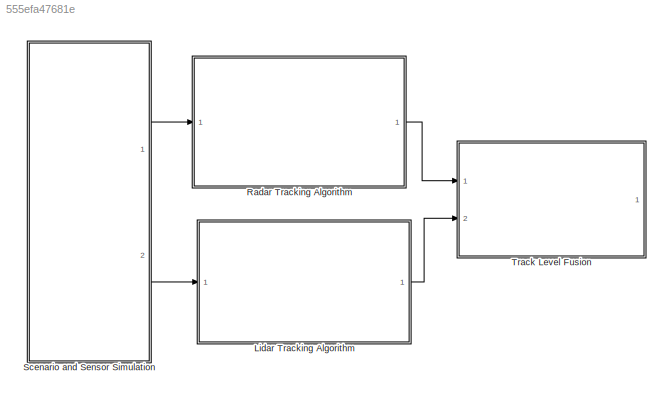
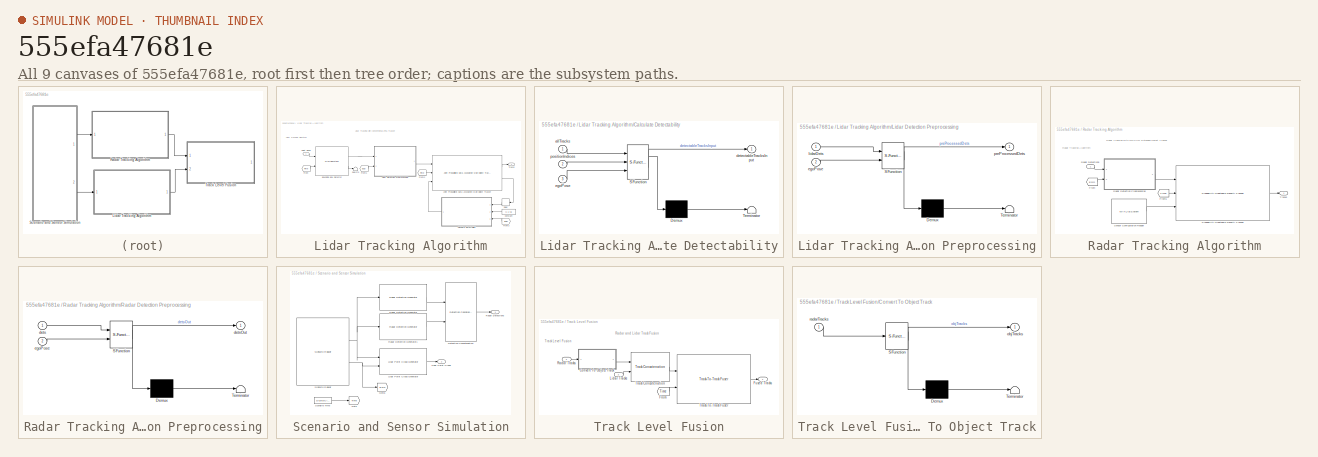
[diagram: thumbnail index - all 9 canvases of the model, root first then tree order]
MODEL slx_555efa47681e
KIND model
CONFIG AbsTol = auto
CONFIG EnableMultiTasking = off
CONFIG FixedStep = 0.1
CONFIG MaxStep = auto
CONFIG MinStep = auto
CONFIG PreLoadFcn = %Load the scnenario recording\nload('RadarAndLidarTrackFusionScenario.mat')\n\nrng(2019);\n\n%RadarTrackBus\nif ~exist('RadarTrackBus','var')\n    % Sample Track\n    sampleTrack =  struct('TrackID', uint32(1), ...\n            'BranchID', uint32(1), ...\n         'SourceIndex', uint32(1), ...\n          'UpdateTime', double(zeros(1)), ...\n                 'Age', uint32(1), ...\n               'State', double...<+4793ch>
CONFIG RelTol = 1e-3
CONFIG SampleTimeConstraint = Unconstrained
CONFIG SolverName = FixedStepDiscrete
CONFIG StartTime = 0.1
CONFIG StopTime = 11.3
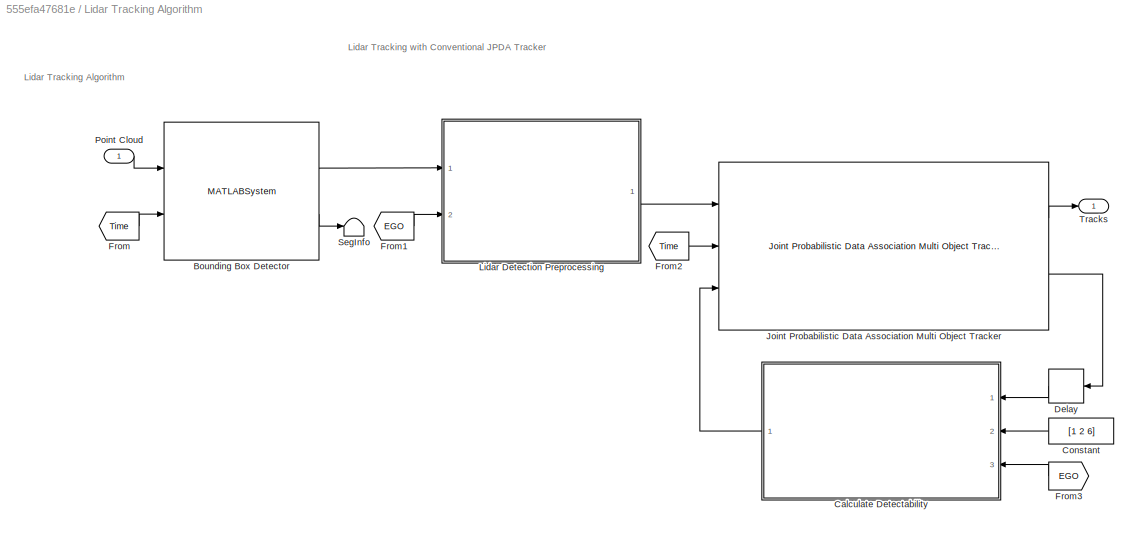
BLOCK [SubSystem] Lidar Tracking Algorithm
  Ports = [1, 1]
  RequestExecContextInheritance = off
BLOCK [MATLABSystem] Lidar Tracking Algorithm/Bounding Box Detector
  DetectionBusName = detectionBus
  EgoVehicleRadius = 0.5
  GroundMaxAngularDistance = 5
  GroundMaxDistance = 0.3
  GroundReferenceVector = [ 0, 0, 1 ]
  MaskDisplay = disp('Helper\nBounding\nBox\nDetector');\nport_label('input',1,'Point Cloud');\nport_label('input',2,'Time');\nport_label('output',1,'Detections');\nport_label('output',2,'SegmentationInfo');
  MaskType = HelperBoundingBoxDetectorBlk
  MaxZDistanceCluster = 3
  MeasurementNoise = blkdiag(0.05*eye(3),25,2*eye(3))
  MeasurementParameters = struct('Frame',fusionCoordinateFrameType(1),'OriginPosition',zeros(3,1), 'OriginVelocity',zeros(3,1),'Orientation',eye(3))
  MinDetectionsPerCluster = 2
  MinZDistanceCluster = -3
  NumLidarPoints = 57600
  Ports = [2, 2]
  SegmentationBusName = segmentationBus
  SegmentationMinDistance = 1.9
  SimulateUsing = Interpreted execution
  System = HelperBoundingBoxDetectorBlk
  XLimits = [ -120, 120 ]
  YLimits = [ -20, 20 ]
  ZLimits = [ -2, 5]
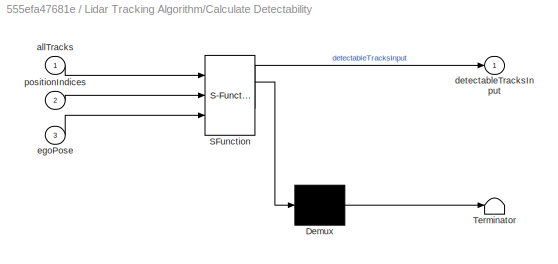
BLOCK [SubSystem] Lidar Tracking Algorithm/Calculate Detectability
  ErrorFcn = Stateflow.Translate.translate
  PermitHierarchicalResolution = ExplicitOnly
  Ports = [3, 1]
  RequestExecContextInheritance = off
  SFBlockType = MATLAB Function
  TreatAsAtomicUnit = on
BLOCK [Demux] Lidar Tracking Algorithm/Calculate Detectability/ Demux 
  Outputs = 1
  Ports = [1, 1]
BLOCK [S-Function] Lidar Tracking Algorithm/Calculate Detectability/ SFunction 
  EnableBusSupport = on
  FunctionName = sf_sfun
  PortCounts = [3 2]
  Ports = [3, 2]
  SFcnIsStateOwnerBlock = off
  SFunctionDeploymentMode = off
  Tag = Stateflow S-Function 2
BLOCK [Terminator] Lidar Tracking Algorithm/Calculate Detectability/ Terminator 
BLOCK [Inport] Lidar Tracking Algorithm/Calculate Detectability/allTracks
BLOCK [Outport] Lidar Tracking Algorithm/Calculate Detectability/detectableTracksInput
BLOCK [Inport] Lidar Tracking Algorithm/Calculate Detectability/egoPose
  Port = 3
BLOCK [Inport] Lidar Tracking Algorithm/Calculate Detectability/positionIndices
  Port = 2
BLOCK [Constant] Lidar Tracking Algorithm/Constant
  Value = [1 2 6]
BLOCK [Delay] Lidar Tracking Algorithm/Delay
  DelayLength = 1
  InputPortMap = u0
  NameLocation = top
  Ports = [1, 1]
BLOCK [From] Lidar Tracking Algorithm/From
  GotoTag = Time
  TagVisibility = global
BLOCK [From] Lidar Tracking Algorithm/From1
  GotoTag = EGO
  TagVisibility = global
BLOCK [From] Lidar Tracking Algorithm/From2
  GotoTag = Time
  TagVisibility = global
BLOCK [From] Lidar Tracking Algorithm/From3
  GotoTag = EGO
  TagVisibility = global
BLOCK [Reference] Lidar Tracking Algorithm/Joint Probabilistic Data Association Multi Object Tracker  REF=motalgorithmslib/Joint Probabilistic Data Association Multi Object Tracker
  Ports = [3, 2]
  SourceBlock = motalgorithmslib/Joint Probabilistic Data Association Multi Object Tracker
  SourceProductBaseCode = TF
  SourceType = trackerJPDA
BLOCK [SubSystem] Lidar Tracking Algorithm/Lidar Detection Preprocessing
  ErrorFcn = Stateflow.Translate.translate
  PermitHierarchicalResolution = ExplicitOnly
  Ports = [2, 1]
  RequestExecContextInheritance = off
  SFBlockType = MATLAB Function
  TreatAsAtomicUnit = on
BLOCK [Demux] Lidar Tracking Algorithm/Lidar Detection Preprocessing/ Demux 
  Outputs = 1
  Ports = [1, 1]
BLOCK [S-Function] Lidar Tracking Algorithm/Lidar Detection Preprocessing/ SFunction 
  EnableBusSupport = on
  FunctionName = sf_sfun
  PortCounts = [2 2]
  Ports = [2, 2]
  SFcnIsStateOwnerBlock = off
  SFunctionDeploymentMode = off
  Tag = Stateflow S-Function 4
BLOCK [Terminator] Lidar Tracking Algorithm/Lidar Detection Preprocessing/ Terminator 
BLOCK [Inport] Lidar Tracking Algorithm/Lidar Detection Preprocessing/egoPose
  Port = 2
BLOCK [Inport] Lidar Tracking Algorithm/Lidar Detection Preprocessing/lidarDets
BLOCK [Outport] Lidar Tracking Algorithm/Lidar Detection Preprocessing/preProcessedDets
BLOCK [Inport] Lidar Tracking Algorithm/Point Cloud
BLOCK [Terminator] Lidar Tracking Algorithm/SegInfo
BLOCK [Outport] Lidar Tracking Algorithm/Tracks
BLOCK [SubSystem] Radar Tracking Algorithm
  Ports = [1, 1]
  RequestExecContextInheritance = off
BLOCK [From] Radar Tracking Algorithm/From
  GotoTag = EGO
  TagVisibility = global
BLOCK [From] Radar Tracking Algorithm/From1
  GotoTag = Time
  TagVisibility = global
BLOCK [Reference] Radar Tracking Algorithm/Probability Hypothesis Density Tracker  REF=motalgorithmslib/Probability Hypothesis Density Tracker
  Ports = [3, 1]
  SourceBlock = motalgorithmslib/Probability Hypothesis Density Tracker
  SourceProductBaseCode = TF
  SourceType = fusion.simulink.trackerPHD
BLOCK [SubSystem] Radar Tracking Algorithm/Radar Detection Preprocessing
  ErrorFcn = Stateflow.Translate.translate
  PermitHierarchicalResolution = ExplicitOnly
  Ports = [2, 1]
  RequestExecContextInheritance = off
  SFBlockType = MATLAB Function
  TreatAsAtomicUnit = on
BLOCK [Demux] Radar Tracking Algorithm/Radar Detection Preprocessing/ Demux 
  Outputs = 1
  Ports = [1, 1]
BLOCK [S-Function] Radar Tracking Algorithm/Radar Detection Preprocessing/ SFunction 
  EnableBusSupport = on
  FunctionName = sf_sfun
  Parameters = radarSensorResolution
  PortCounts = [2 2]
  Ports = [2, 2]
  SFcnIsStateOwnerBlock = off
  SFunctionDeploymentMode = off
  Tag = Stateflow S-Function 5
BLOCK [Terminator] Radar Tracking Algorithm/Radar Detection Preprocessing/ Terminator 
BLOCK [Inport] Radar Tracking Algorithm/Radar Detection Preprocessing/dets
BLOCK [Outport] Radar Tracking Algorithm/Radar Detection Preprocessing/detsOut
BLOCK [Inport] Radar Tracking Algorithm/Radar Detection Preprocessing/egoPose
  Port = 2
BLOCK [Inport] Radar Tracking Algorithm/Radar Detections
BLOCK [MATLABSystem] Radar Tracking Algorithm/Sensor Configuration Reader
  BusName = BusDataLog
  BusNameSource = Auto
  DataFile = { 'SensorConfigurations' }
  MaskDisplay = disp(['Helper' char(10) 'Sensor' char(10) 'Configurations' char(10) 'Reader']);\nport_label('output',1,['Sensor' char(10) 'Conf']);
  MaskType = HelperSourceConfigReader
  Ports = [0, 1]
  System = HelperSourceConfigReader
BLOCK [Outport] Radar Tracking Algorithm/Tracks
BLOCK [SubSystem] Scenario and Sensor Simulation
  Ports = [0, 2]
  RequestExecContextInheritance = off
BLOCK [Reference] Scenario and Sensor Simulation/Detection Concatenation  REF=trackingutilitieslib/Detection Concatenation
  Ports = [2, 1]
  SourceBlock = trackingutilitieslib/Detection Concatenation
  SourceProductBaseCode = AE,DR,TF,RA,UV,VE
  SourceType = matlabshared.tracking.internal.DetectionConcatenation
BLOCK [Goto] Scenario and Sensor Simulation/Goto
  GotoTag = Time
  TagVisibility = global
BLOCK [Goto] Scenario and Sensor Simulation/Goto1
  GotoTag = EGO
  TagVisibility = global
BLOCK [Outport] Scenario and Sensor Simulation/Lidar Point Cloud
  Port = 2
BLOCK [Reference] Scenario and Sensor Simulation/Lidar Point Cloud Generator  REF=drivingscenarioandsensors/Lidar Point Cloud Generator
  Ports = [2, 1]
  SourceBlock = drivingscenarioandsensors/Lidar Point Cloud Generator
  SourceProductBaseCode = DR
  SourceType = lidarPointCloudGenerator
BLOCK [Reference] Scenario and Sensor Simulation/Radar Detection Generator  REF=drivingscenarioandsensors/Radar Detection Generator
  Ports = [1, 1]
  SourceBlock = drivingscenarioandsensors/Radar Detection Generator
  SourceProductBaseCode = DR
  SourceType = radarDetectionGenerator
BLOCK [Reference] Scenario and Sensor Simulation/Radar Detection Generator1  REF=drivingscenarioandsensors/Radar Detection Generator
  Ports = [1, 1]
  SourceBlock = drivingscenarioandsensors/Radar Detection Generator
  SourceProductBaseCode = DR
  SourceType = radarDetectionGenerator
BLOCK [Outport] Scenario and Sensor Simulation/Radar Detections
BLOCK [Reference] Scenario and Sensor Simulation/Scenario Reader  REF=drivingscenarioandsensors/Scenario Reader
  Ports = [0, 2]
  SourceBlock = drivingscenarioandsensors/Scenario Reader
  SourceProductBaseCode = DR
  SourceType = driving.scenario.internal.ScenarioReader
BLOCK [DigitalClock] Scenario and Sensor Simulation/Scenario Time
  SampleTime = 0.1
BLOCK [SubSystem] Track Level Fusion
  Ports = [2, 1]
  RequestExecContextInheritance = off
BLOCK [SubSystem] Track Level Fusion/Convert To Object Track
  ErrorFcn = Stateflow.Translate.translate
  PermitHierarchicalResolution = ExplicitOnly
  Ports = [1, 1]
  RequestExecContextInheritance = off
  SFBlockType = MATLAB Function
  TreatAsAtomicUnit = on
BLOCK [Demux] Track Level Fusion/Convert To Object Track/ Demux 
  Outputs = 1
  Ports = [1, 1]
BLOCK [S-Function] Track Level Fusion/Convert To Object Track/ SFunction 
  EnableBusSupport = on
  FunctionName = sf_sfun
  PortCounts = [1 2]
  Ports = [1, 2]
  SFcnIsStateOwnerBlock = off
  SFunctionDeploymentMode = off
  Tag = Stateflow S-Function 1
BLOCK [Terminator] Track Level Fusion/Convert To Object Track/ Terminator 
BLOCK [Outport] Track Level Fusion/Convert To Object Track/objTracks
BLOCK [Inport] Track Level Fusion/Convert To Object Track/radarTracks
BLOCK [From] Track Level Fusion/From
  GotoTag = Time
  TagVisibility = global
BLOCK [Outport] Track Level Fusion/Fused Tracks
BLOCK [Inport] Track Level Fusion/Lidar Tracks
  Port = 2
BLOCK [Inport] Track Level Fusion/Radar Tracks
BLOCK [Reference] Track Level Fusion/Track Concatenation  REF=trackingutilitieslib/Track Concatenation
  Ports = [2, 1]
  SourceBlock = trackingutilitieslib/Track Concatenation
  SourceProductBaseCode = AE,DR,TF,RA,UV,VE
  SourceType = matlabshared.tracking.internal.TrackConcatenation
BLOCK [Reference] Track Level Fusion/Track-To-Track Fuser  REF=motalgorithmslib/Track-To-Track Fuser
  Ports = [2, 1]
  SourceBlock = motalgorithmslib/Track-To-Track Fuser
  SourceProductBaseCode = TF
  SourceType = fusion.simulink.trackFuser
ANNOTATION Lidar Tracking Algorithm: Lidar Tracking with Conventional JPDA Tracker
ANNOTATION Lidar Tracking Algorithm: Lidar Tracking Algorithm
ANNOTATION Radar Tracking Algorithm: Radar Tracking with GM-PHD Extended Object Tracker
ANNOTATION Radar Tracking Algorithm: Radar Tracking Algorithm
ANNOTATION Track Level Fusion: Radar and Lidar Track Fusion
ANNOTATION Track Level Fusion: Track Level Fusion
LINE Lidar Tracking Algorithm/Bounding Box Detector:1 -> Lidar Tracking Algorithm/Lidar Detection Preprocessing:1
LINE Lidar Tracking Algorithm/Bounding Box Detector:2 -> Lidar Tracking Algorithm/SegInfo:1
LINE Lidar Tracking Algorithm/Calculate Detectability:1 -> Lidar Tracking Algorithm/Joint Probabilistic Data Association Multi Object Tracker:3
LINE Lidar Tracking Algorithm/Constant:1 -> Lidar Tracking Algorithm/Calculate Detectability:2
LINE Lidar Tracking Algorithm/Delay:1 -> Lidar Tracking Algorithm/Calculate Detectability:1
LINE Lidar Tracking Algorithm/From1:1 -> Lidar Tracking Algorithm/Lidar Detection Preprocessing:2
LINE Lidar Tracking Algorithm/From2:1 -> Lidar Tracking Algorithm/Joint Probabilistic Data Association Multi Object Tracker:2
LINE Lidar Tracking Algorithm/From3:1 -> Lidar Tracking Algorithm/Calculate Detectability:3
LINE Lidar Tracking Algorithm/From:1 -> Lidar Tracking Algorithm/Bounding Box Detector:2
LINE Lidar Tracking Algorithm/Joint Probabilistic Data Association Multi Object Tracker:1 -> Lidar Tracking Algorithm/Tracks:1
LINE Lidar Tracking Algorithm/Joint Probabilistic Data Association Multi Object Tracker:2 -> Lidar Tracking Algorithm/Delay:1
LINE Lidar Tracking Algorithm/Lidar Detection Preprocessing:1 -> Lidar Tracking Algorithm/Joint Probabilistic Data Association Multi Object Tracker:1
LINE Lidar Tracking Algorithm/Point Cloud:1 -> Lidar Tracking Algorithm/Bounding Box Detector:1
LINE Lidar Tracking Algorithm:1 -> Track Level Fusion:2
LINE Radar Tracking Algorithm/From1:1 -> Radar Tracking Algorithm/Probability Hypothesis Density Tracker:2
LINE Radar Tracking Algorithm/From:1 -> Radar Tracking Algorithm/Radar Detection Preprocessing:2
LINE Radar Tracking Algorithm/Probability Hypothesis Density Tracker:1 -> Radar Tracking Algorithm/Tracks:1
LINE Radar Tracking Algorithm/Radar Detection Preprocessing:1 -> Radar Tracking Algorithm/Probability Hypothesis Density Tracker:1
LINE Radar Tracking Algorithm/Radar Detections:1 -> Radar Tracking Algorithm/Radar Detection Preprocessing:1
LINE Radar Tracking Algorithm/Sensor Configuration Reader:1 -> Radar Tracking Algorithm/Probability Hypothesis Density Tracker:3
LINE Radar Tracking Algorithm:1 -> Track Level Fusion:1
LINE Scenario and Sensor Simulation/Detection Concatenation:1 -> Scenario and Sensor Simulation/Radar Detections:1
LINE Scenario and Sensor Simulation/Lidar Point Cloud Generator:1 -> Scenario and Sensor Simulation/Lidar Point Cloud:1
LINE Scenario and Sensor Simulation/Radar Detection Generator1:1 -> Scenario and Sensor Simulation/Detection Concatenation:2
LINE Scenario and Sensor Simulation/Radar Detection Generator:1 -> Scenario and Sensor Simulation/Detection Concatenation:1
NET Scenario and Sensor Simulation/Scenario Reader:1 -> Scenario and Sensor Simulation/Lidar Point Cloud Generator:1, Scenario and Sensor Simulation/Radar Detection Generator1:1, Scenario and Sensor Simulation/Radar Detection Generator:1
NET Scenario and Sensor Simulation/Scenario Reader:2 -> Scenario and Sensor Simulation/Goto1:1, Scenario and Sensor Simulation/Lidar Point Cloud Generator:2
LINE Scenario and Sensor Simulation/Scenario Time:1 -> Scenario and Sensor Simulation/Goto:1
LINE Scenario and Sensor Simulation:1 -> Radar Tracking Algorithm:1
LINE Scenario and Sensor Simulation:2 -> Lidar Tracking Algorithm:1
LINE Track Level Fusion/Convert To Object Track:1 -> Track Level Fusion/Track Concatenation:1
LINE Track Level Fusion/From:1 -> Track Level Fusion/Track-To-Track Fuser:2
LINE Track Level Fusion/Lidar Tracks:1 -> Track Level Fusion/Track Concatenation:2
LINE Track Level Fusion/Radar Tracks:1 -> Track Level Fusion/Convert To Object Track:1
LINE Track Level Fusion/Track Concatenation:1 -> Track Level Fusion/Track-To-Track Fuser:1
LINE Track Level Fusion/Track-To-Track Fuser:1 -> Track Level Fusion/Fused Tracks:1
note: NET lines group one-source signal fan-out (src -> all destinations, sorted); 1:1 wires keep LINE
CHART Track Level Fusion/Convert To Object Track states=1 transitions=1
  STATE_LABEL 'eML_blk_kernel()'
  STATE_LABEL "SCRIPT:\n\nfunction objTracks = toObjectTrack(radarTracks)\n% This function adds 'BranchID' field to the output bus which is expected by the Track\n% Concatenation block but is not available in trackerPHD output.\n\ntrk  = struct('TrackID', uint32(1), ...\n            'BranchID', uint32(1), ...\n         'SourceIndex', uint32(1), ...\n          'UpdateTime', double(zeros(1)), ...\n                 'Age', ui...<+1282ch>"
CHART Lidar Tracking Algorithm/Calculate Detectability states=1 transitions=1
  STATE_LABEL 'eML_blk_kernel()'
  STATE_LABEL "SCRIPT:\nfunction detectableTracksInput = CalculateDetectability(allTracks, positionIndices,egoPose)\n% This function calculates the probability of detection for each track. The\n% helperCalcDetectability function is used to compute the probability after\n% extracting the tracks from the bus.\n\negoMeasParams = struct('Frame',fusionCoordinateFrameType(1),...\n    'OriginPosition',egoPose.Position(:),...\n...<+315ch>"
CHART Lidar Tracking Algorithm/Lidar Detection Preprocessing states=1 transitions=1
  STATE_LABEL 'eML_blk_kernel()'
  STATE_LABEL "SCRIPT:\nfunction preProcessedDets = preProcessDetections(lidarDets, egoPose)\n% Add Ego-Vehicle's information to the detection's MeasurementParameters to\n% track state in the scenario frame.\n\npreProcessedDets = lidarDets;\negoMeasParams = struct('Frame',fusionCoordinateFrameType(1),...\n    'OriginPosition',egoPose.Position(:),...\n    'OriginVelocity',egoPose.Velocity(:),...\n    'Orientation', rotmat...<+531ch>"
CHART Radar Tracking Algorithm/Radar Detection Preprocessing states=1 transitions=1
  STATE_LABEL 'eML_blk_kernel()'
  STATE_LABEL "SCRIPT:\nfunction detsOut = preprocessDetections(dets,egoPose,radarSensorResolution)\n% Detections cannot report an uncertainty better than sensor's resolution\n% and must be updated to include ego vehicle or INS information\n\n% Update Measurement paramters\nn = dets.NumDetections;\n% Sample detection\nmeasPram=struct('Frame',fusionCoordinateFrameType(1),...\n    'OriginPosition',double(zeros(3,1)),...\n  ...<+2317ch>"
CHART  states=0 transitions=0
CHART  states=0 transitions=0
CHART  states=0 transitions=0
CHART  states=0 transitions=0
